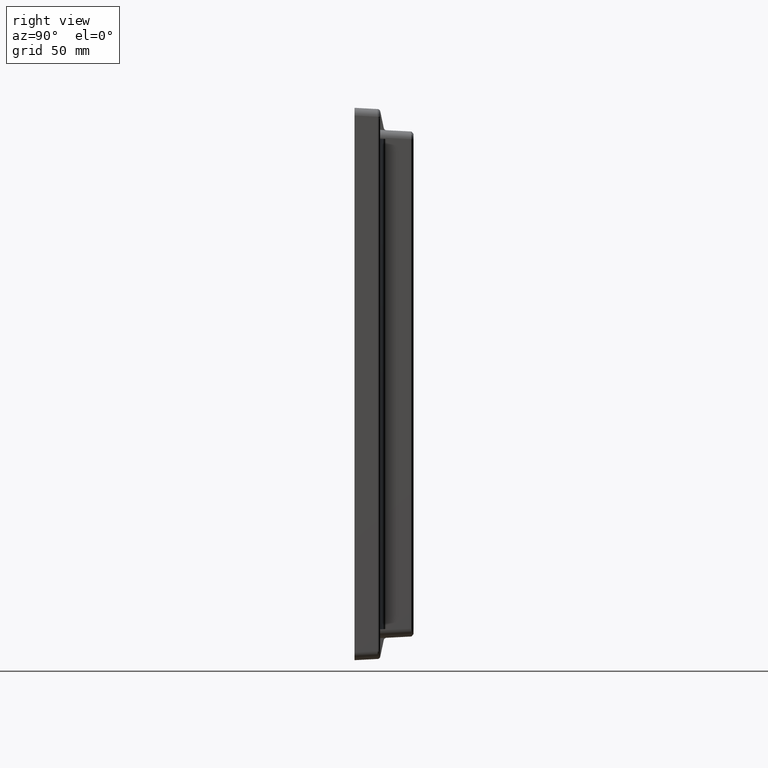
[diagram: clean part render]
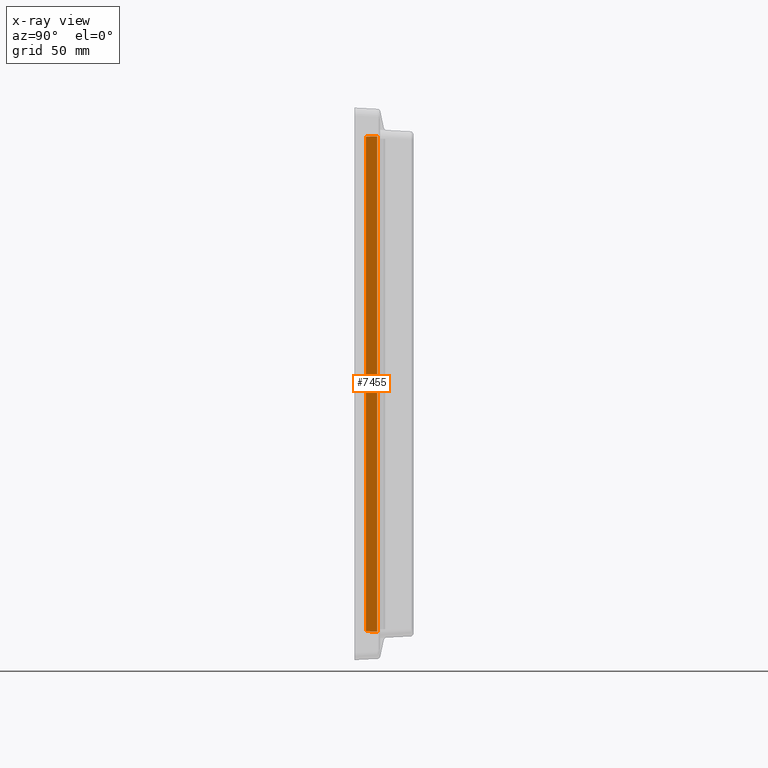
[diagram: x-ray — body ghosted, one internal face saturated and labeled with its STEP entity id]
A machine part, right view, then the same camera in x-ray: the body is ghosted and one INTERNAL B-rep face — a face not visible from any outside direction — is saturated and labeled: STEP entity #7455.
In plain terms, the highlighted planar face has unit normal (0.9994, -0.0349, 0).
Its self-contained STEP definition (entity closure, byte-faithful):
#4339 = CARTESIAN_POINT ( 'NONE',  ( 159.8635631175543800, 3.469446951953614200E-015, 176.0948863249350900 ) ) ;
#4340 = DIRECTION ( 'NONE',  ( 0.0000000000000000000, 0.0000000000000000000, 1.000000000000000000 ) ) ;
#4341 = VECTOR ( 'NONE', #4340, 1000.000000000000000 ) ;
#4342 = CARTESIAN_POINT ( 'NONE',  ( 159.8635631175543800, 3.469446951953614200E-015, -175.5000000000000000 ) ) ;
#4343 = LINE ( 'NONE', #4342, #4341 ) ;
#4344 = CARTESIAN_POINT ( 'NONE',  ( 159.8635631175543800, 3.469446951953614200E-015, -176.0948863249350900 ) ) ;
#6038 = CARTESIAN_POINT ( 'NONE',  ( 160.1496207191811200, 8.191617933687217200, -176.3759943471471300 ) ) ;
#6093 = DIRECTION ( 'NONE',  ( 0.03487899055459543800, 0.9988036077738138300, -0.03427548855823892000 ) ) ;
#6094 = VECTOR ( 'NONE', #6093, 999.9999999999998900 ) ;
#6095 = CARTESIAN_POINT ( 'NONE',  ( 159.8628519342594800, -0.02036562496303173700, -176.0941874470576400 ) ) ;
#6096 = LINE ( 'NONE', #6095, #6094 ) ;
#6131 = CARTESIAN_POINT ( 'NONE',  ( 160.1496207191811200, 8.191617933687197700, 176.3759943471471800 ) ) ;
#6132 = DIRECTION ( 'NONE',  ( -0.03487899055459543800, -0.9988036077738138300, -0.03427548855823892000 ) ) ;
#6133 = VECTOR ( 'NONE', #6132, 999.9999999999998900 ) ;
#6134 = CARTESIAN_POINT ( 'NONE',  ( 159.4432333852308500, -12.03666867715590300, 175.6818294473747000 ) ) ;
#6135 = LINE ( 'NONE', #6134, #6133 ) ;
#7350 = EDGE_CURVE ( 'NONE', #9470, #9434, #10522, .T. ) ;
#7455 = ADVANCED_FACE ( 'NONE', ( #10702 ), #10706, .T. ) ;
#7456 = ORIENTED_EDGE ( 'NONE', *, *, #8825, .F. ) ;
#7457 = ORIENTED_EDGE ( 'NONE', *, *, #9436, .T. ) ;
#7458 = ORIENTED_EDGE ( 'NONE', *, *, #7350, .F. ) ;
#7459 = ORIENTED_EDGE ( 'NONE', *, *, #9469, .T. ) ;
#7477 = EDGE_LOOP ( 'NONE', ( #7456, #7457, #7458, #7459 ) ) ;
#8823 = VERTEX_POINT ( 'NONE', #4344 ) ;
#8825 = EDGE_CURVE ( 'NONE', #8823, #8826, #4343, .T. ) ;
#8826 = VERTEX_POINT ( 'NONE', #4339 ) ;
#9434 = VERTEX_POINT ( 'NONE', #6038 ) ;
#9436 = EDGE_CURVE ( 'NONE', #8823, #9434, #6096, .T. ) ;
#9469 = EDGE_CURVE ( 'NONE', #9470, #8826, #6135, .T. ) ;
#9470 = VERTEX_POINT ( 'NONE', #6131 ) ;
#10519 = DIRECTION ( 'NONE',  ( 2.089673817787283900E-018, 5.984042872483375800E-017, -1.000000000000000000 ) ) ;
#10520 = VECTOR ( 'NONE', #10519, 1000.000000000000000 ) ;
#10521 = CARTESIAN_POINT ( 'NONE',  ( 160.1496207191811200, 8.191617933687217200, -175.5000000000000000 ) ) ;
#10522 = LINE ( 'NONE', #10521, #10520 ) ;
#10697 = DIRECTION ( 'NONE',  ( 0.03489949670250104600, 0.9993908270190956500, 0.0000000000000000000 ) ) ;
#10698 = DIRECTION ( 'NONE',  ( 0.9993908270190957600, -0.03489949670250105200, 0.0000000000000000000 ) ) ;
#10699 = CARTESIAN_POINT ( 'NONE',  ( 159.8635631175543800, 3.469446951953614200E-015, -175.5000000000000000 ) ) ;
#10701 = AXIS2_PLACEMENT_3D ( 'NONE', #10699, #10698, #10697 ) ;
#10702 = FACE_OUTER_BOUND ( 'NONE', #7477, .T. ) ;
#10706 = PLANE ( 'NONE',  #10701 ) ;